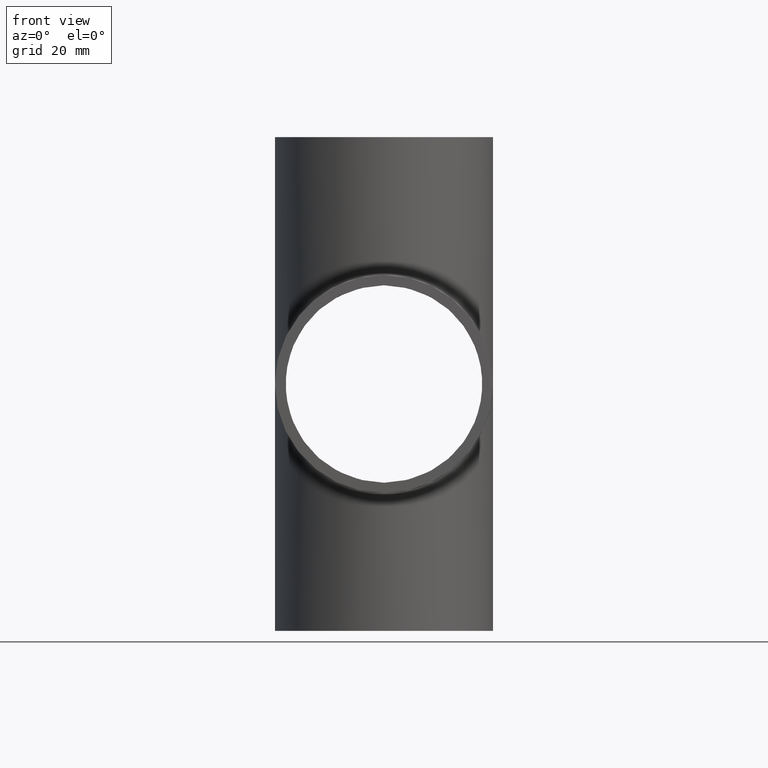
[diagram: clean part render]
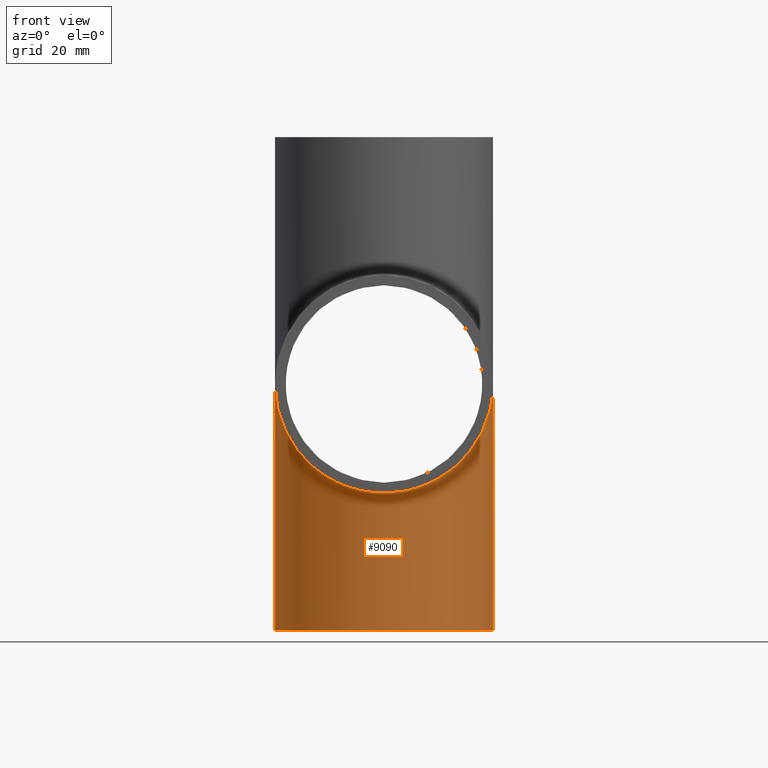
[diagram: same view with one face highlighted and labeled with its STEP entity id]
A machine part, front view. The second image highlights one B-rep face of the part: STEP entity #9090.
In plain terms, the highlighted cylindrical surface (partial cylindrical patch) has radius 21.2 mm, axis along (-0, -0, -1).
Its self-contained STEP definition (entity closure, byte-faithful):
#606 = EDGE_CURVE ( 'NONE', #8158, #3216, #9865, .T. ) ;
#1034 = CARTESIAN_POINT ( 'NONE',  ( 0.0000000000000000000, 0.0000000000000000000, 48.00000000000000000 ) ) ;
#1155 = AXIS2_PLACEMENT_3D ( 'NONE', #1034, #6757, #5918 ) ;
#1275 = CARTESIAN_POINT ( 'NONE',  ( -21.19999999999999900, 0.0000000000000000000, 0.0000000000000000000 ) ) ;
#1435 = VERTEX_POINT ( 'NONE', #6893 ) ;
#1474 = CARTESIAN_POINT ( 'NONE',  ( -21.19999999999999900, 0.0000000000000000000, 48.00000000000000000 ) ) ;
#1475 = CARTESIAN_POINT ( 'NONE',  ( 12.41867247769038200, -21.19999999999999200, -21.19999999999999200 ) ) ;
#2057 = EDGE_CURVE ( 'NONE', #3216, #7223, #8442, .T. ) ;
#2097 = CARTESIAN_POINT ( 'NONE',  ( -12.41867247769038200, -21.19999999999999200, -21.19999999999999200 ) ) ;
#2513 = DIRECTION ( 'NONE',  ( -0.0000000000000000000, -0.0000000000000000000, -1.000000000000000000 ) ) ;
#2596 = AXIS2_PLACEMENT_3D ( 'NONE', #4046, #4019, #3985 ) ;
#2728 = CARTESIAN_POINT ( 'NONE',  ( 0.0000000000000000000, -21.19999999999999600, -21.19999999999999900 ) ) ;
#2885 = ORIENTED_EDGE ( 'NONE', *, *, #2057, .T. ) ;
#3133 = CARTESIAN_POINT ( 'NONE',  ( 21.19999999999999200, -12.41867247769037700, -12.41867247769037700 ) ) ;
#3216 = VERTEX_POINT ( 'NONE', #8733 ) ;
#3265 = ORIENTED_EDGE ( 'NONE', *, *, #606, .T. ) ;
#3537 = ORIENTED_EDGE ( 'NONE', *, *, #8524, .F. ) ;
#3929 = ORIENTED_EDGE ( 'NONE', *, *, #10567, .F. ) ;
#3985 = DIRECTION ( 'NONE',  ( 1.000000000000000000, 0.0000000000000000000, 0.0000000000000000000 ) ) ;
#3993 = VERTEX_POINT ( 'NONE', #2728 ) ;
#4019 = DIRECTION ( 'NONE',  ( 0.0000000000000000000, 0.0000000000000000000, 1.000000000000000000 ) ) ;
#4046 = CARTESIAN_POINT ( 'NONE',  ( 0.0000000000000000000, 0.0000000000000000000, -48.00000000000000000 ) ) ;
#4156 =( BOUNDED_CURVE ( )  B_SPLINE_CURVE ( 3, ( #1275, #6139, #2097, #7825 ),
 .UNSPECIFIED., .F., .F. ) 
 B_SPLINE_CURVE_WITH_KNOTS ( ( 4, 4 ),
 ( 4.712388980384689700, 6.283185307179586200 ),
 .UNSPECIFIED. ) 
 CURVE ( )  GEOMETRIC_REPRESENTATION_ITEM ( )  RATIONAL_B_SPLINE_CURVE ( ( 1.000000000000000000, 0.8047378541243649400, 0.8047378541243649400, 1.000000000000000000 ) ) 
 REPRESENTATION_ITEM ( '' )  );
#4842 = VECTOR ( 'NONE', #2513, 1000.000000000000000 ) ;
#5110 = EDGE_LOOP ( 'NONE', ( #6149, #3929, #3537, #3265, #2885 ) ) ;
#5513 = DIRECTION ( 'NONE',  ( -0.0000000000000000000, -0.0000000000000000000, -1.000000000000000000 ) ) ;
#5558 = CARTESIAN_POINT ( 'NONE',  ( -21.19999999999999900, 0.0000000000000000000, 0.0000000000000000000 ) ) ;
#5565 = CYLINDRICAL_SURFACE ( 'NONE', #1155, 21.19999999999999900 ) ;
#5918 = DIRECTION ( 'NONE',  ( -1.000000000000000000, 0.0000000000000000000, 0.0000000000000000000 ) ) ;
#6139 = CARTESIAN_POINT ( 'NONE',  ( -21.19999999999999200, -12.41867247769037700, -12.41867247769037700 ) ) ;
#6149 = ORIENTED_EDGE ( 'NONE', *, *, #6980, .F. ) ;
#6757 = DIRECTION ( 'NONE',  ( -0.0000000000000000000, -0.0000000000000000000, -1.000000000000000000 ) ) ;
#6893 = CARTESIAN_POINT ( 'NONE',  ( 21.19999999999999900, 0.0000000000000000000, 0.0000000000000000000 ) ) ;
#6980 = EDGE_CURVE ( 'NONE', #1435, #7223, #9184, .T. ) ;
#7198 = CARTESIAN_POINT ( 'NONE',  ( 0.0000000000000000000, -21.19999999999999600, -21.19999999999999900 ) ) ;
#7223 = VERTEX_POINT ( 'NONE', #10129 ) ;
#7421 = CARTESIAN_POINT ( 'NONE',  ( 21.19999999999999900, 2.596251214192388800E-015, 48.00000000000000000 ) ) ;
#7683 = VECTOR ( 'NONE', #5513, 1000.000000000000000 ) ;
#7825 = CARTESIAN_POINT ( 'NONE',  ( 0.0000000000000000000, -21.19999999999999600, -21.19999999999999900 ) ) ;
#8013 = FACE_OUTER_BOUND ( 'NONE', #5110, .T. ) ;
#8158 = VERTEX_POINT ( 'NONE', #5558 ) ;
#8442 = CIRCLE ( 'NONE', #2596, 21.19999999999999900 ) ;
#8524 = EDGE_CURVE ( 'NONE', #8158, #3993, #4156, .T. ) ;
#8733 = CARTESIAN_POINT ( 'NONE',  ( -21.19999999999999900, 0.0000000000000000000, -48.00000000000000000 ) ) ;
#8868 = CARTESIAN_POINT ( 'NONE',  ( 21.19999999999999900, 0.0000000000000000000, 0.0000000000000000000 ) ) ;
#9090 = ADVANCED_FACE ( 'NONE', ( #8013 ), #5565, .T. ) ;
#9184 = LINE ( 'NONE', #7421, #4842 ) ;
#9865 = LINE ( 'NONE', #1474, #7683 ) ;
#10129 = CARTESIAN_POINT ( 'NONE',  ( 21.19999999999999900, 2.596251214192388800E-015, -48.00000000000000000 ) ) ;
#10377 =( BOUNDED_CURVE ( )  B_SPLINE_CURVE ( 3, ( #7198, #1475, #3133, #8868 ),
 .UNSPECIFIED., .F., .F. ) 
 B_SPLINE_CURVE_WITH_KNOTS ( ( 4, 4 ),
 ( 0.0000000000000000000, 1.570796326794896800 ),
 .UNSPECIFIED. ) 
 CURVE ( )  GEOMETRIC_REPRESENTATION_ITEM ( )  RATIONAL_B_SPLINE_CURVE ( ( 1.000000000000000000, 0.8047378541243649400, 0.8047378541243649400, 1.000000000000000000 ) ) 
 REPRESENTATION_ITEM ( '' )  );
#10567 = EDGE_CURVE ( 'NONE', #3993, #1435, #10377, .T. ) ;